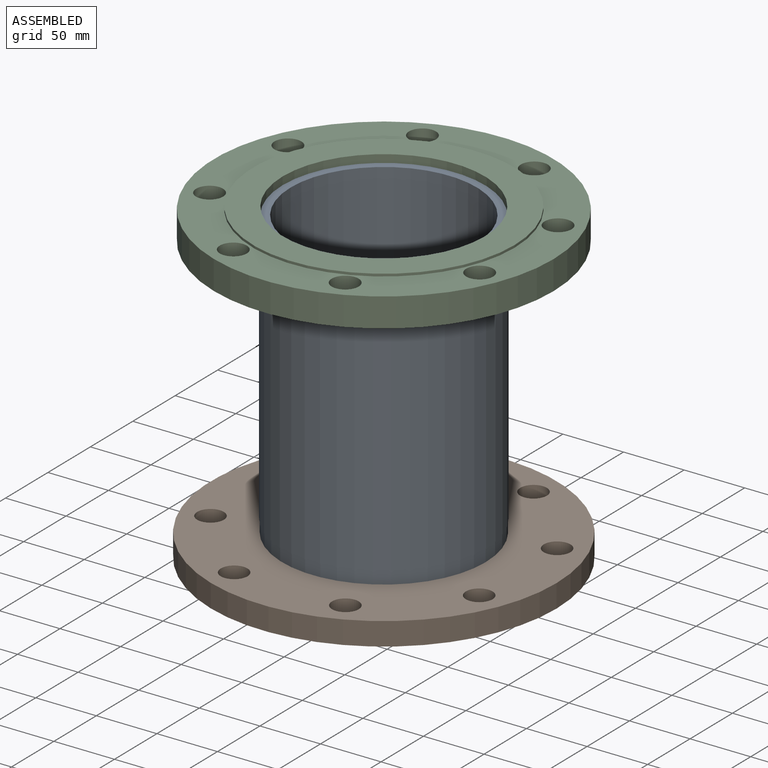
[diagram: assembled view]
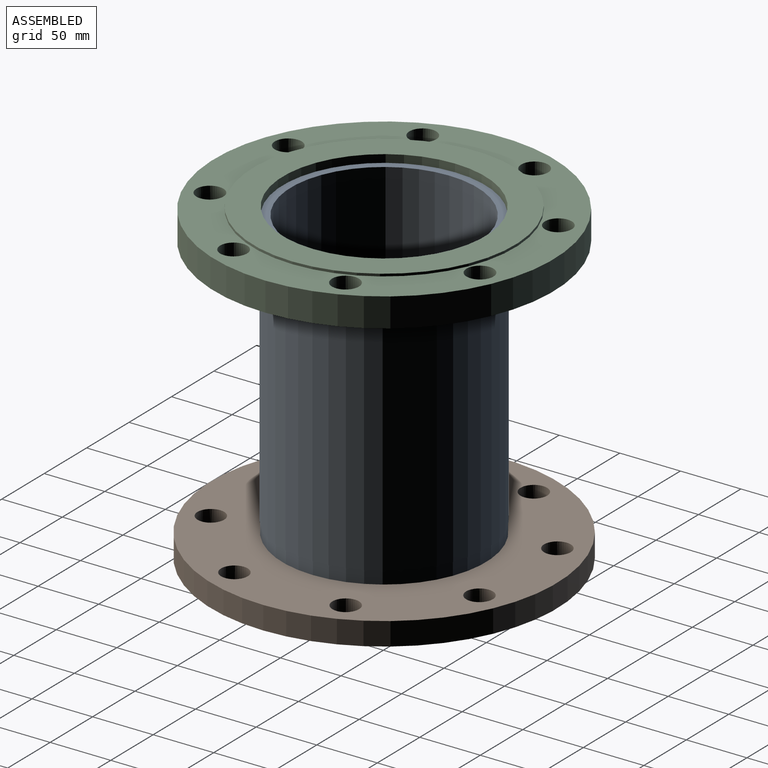
[diagram: assembled view, second angle]
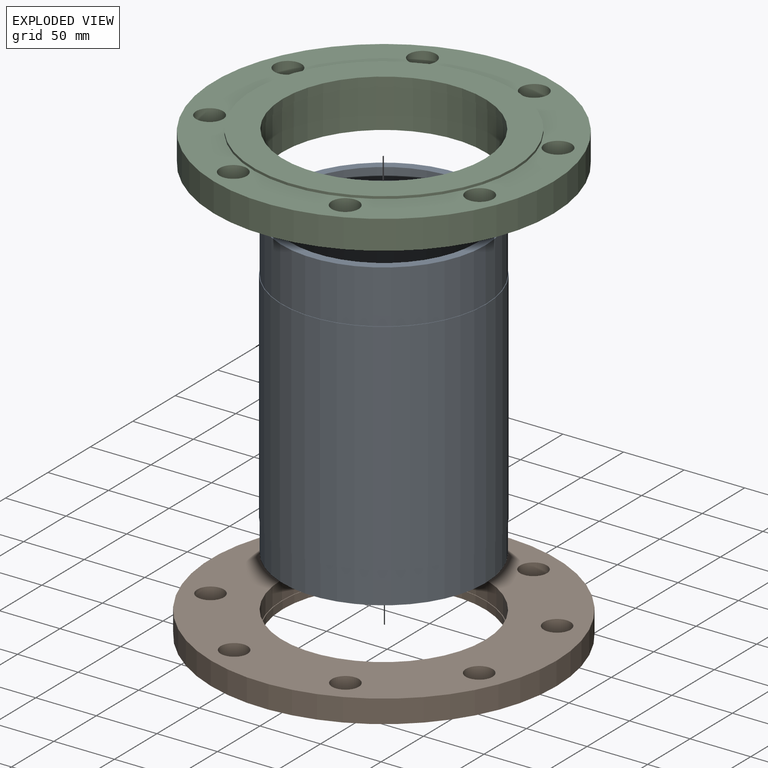
[diagram: exploded view]
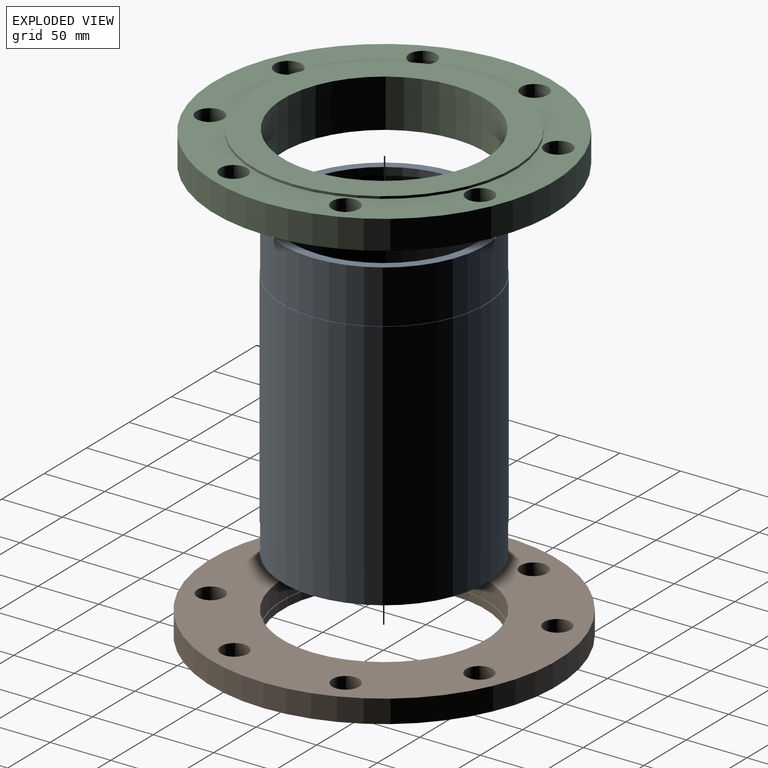
[diagram: exploded view, second angle]
ASSEMBLY  parts=3 mates=2
PART A: 8 faces, bbox 252x168.8x168.8 mm
  f0: plane 168x168mm, normal (-1,0,0), area 3588.9mm2, adj f1,f7
  f1: cylinder r=76.9mm len=252mm, axis (-1,0,0), area 121760.6mm2, adj f0,f2
  f2: plane 168x168mm, normal (1,0,0), area 3588.9mm2, adj f1,f3
  f3: cylinder r=84mm len=168mm, axis (-1,0,0), area 23222.7mm2, adj f2,f4
  f4: plane 168.8x168.8mm, normal (1,0,0), area 211.6mm2, adj f3,f5
  f5: cylinder r=84.4mm len=182mm, axis (-1,0,0), area 96514.8mm2, adj f4,f6
  f6: plane 168.8x168.8mm, normal (-1,0,0), area 211.6mm2, adj f5,f7
  f7: cylinder r=84mm len=168mm, axis (-1,0,0), area 13722.5mm2, adj f0,f6
PART B: 16 faces, bbox 285x285x22 mm
  f0: plane 168x168mm, normal (0,0,1), area 263.1mm2, adj f1,f7
  f1: cylinder r=83.5mm len=167mm, axis (0,0,1), area 3410.2mm2, adj f0,f2
  f2: plane 212x212mm, normal (0,0,-1), area 13395mm2, adj f1,f3
  f3: cylinder r=106mm len=212mm, axis (0,0,1), area 1998.1mm2, adj f2,f4
  f4: plane 285x285mm, normal (0,0,-1), area 25454mm2, adj f3,f5,f8,f9,f10,f11,f12,f13
  f5: cylinder r=142.5mm len=285mm, axis (0,0,1), area 17011.7mm2, adj f4,f6
  f6: plane 285x285mm, normal (0,0,1), area 38585.8mm2, adj f5,f7,f8,f9,f10,f11,f12,f13
  f7: cylinder r=84mm len=168mm, axis (0,0,1), area 8180.7mm2, adj f0,f6
  f8: cylinder r=11mm len=22mm, axis (0,0,1), area 1313.2mm2, adj f4,f6
  f9: cylinder r=11mm len=22mm, axis (0,0,1), area 1313.2mm2, adj f4,f6
  f10: cylinder r=11mm len=22mm, axis (0,0,1), area 1313.2mm2, adj f4,f6
  f11: cylinder r=11mm len=22mm, axis (0,0,1), area 1313.2mm2, adj f4,f6
  f12: cylinder r=11mm len=22mm, axis (0,0,1), area 1313.2mm2, adj f4,f6
  f13: cylinder r=11mm len=22mm, axis (0,0,1), area 1313.2mm2, adj f4,f6
  f14: cylinder r=11mm len=22mm, axis (0,0,1), area 1313.2mm2, adj f4,f6
  f15: cylinder r=11mm len=22mm, axis (0,0,1), area 1313.2mm2, adj f4,f6
PART C: 20 faces, bbox 280x280x40 mm
  f0: plane 186x186mm, normal (0,0,1), area 5004.6mm2, adj f1,f19
  f1: cylinder r=84mm len=168mm, axis (0,0,1), area 17680.9mm2, adj f0,f2
  f2: plane 168x168mm, normal (0,0,1), area 263.1mm2, adj f1,f3
  f3: cylinder r=83.5mm len=167mm, axis (0,0,1), area 3410.2mm2, adj f2,f4
  f4: plane 215.9x215.9mm, normal (0,0,-1), area 14705.6mm2, adj f3,f5
  f5: cylinder r=107.95mm len=215.9mm, axis (0,0,1), area 1356.5mm2, adj f4,f6
  f6: plane 280x280mm, normal (0,0,-1), area 21862mm2, adj f5,f7,f10,f11,f12,f13,f14,f15
  f7: cylinder r=140mm len=280mm, axis (0,0,1), area 21023.5mm2, adj f6,f8
  f8: plane 280x280mm, normal (0,0,1), area 27680.9mm2, adj f7,f10,f11,f12,f13,f14,f15,f16
  f9: cylinder r=96mm len=192mm, axis (0,0,1), area 4885.8mm2, adj f18,f19
  f10: cylinder r=11.11mm len=23.9mm, axis (0,0,1), area 1668.7mm2, adj f6,f8
  f11: cylinder r=11.11mm len=23.9mm, axis (0,0,1), area 1668.7mm2, adj f6,f8
  f12: cylinder r=11.11mm len=23.9mm, axis (0,0,1), area 1668.7mm2, adj f6,f8
  f13: cylinder r=11.11mm len=23.9mm, axis (0,0,1), area 1668.7mm2, adj f6,f8
  f14: cylinder r=11.11mm len=23.9mm, axis (0,0,1), area 1668.7mm2, adj f6,f8
  f15: cylinder r=11.11mm len=23.9mm, axis (0,0,1), area 1668.7mm2, adj f6,f8
  f16: cylinder r=11.11mm len=23.9mm, axis (0,0,1), area 1668.7mm2, adj f6,f8
  f17: cylinder r=11.11mm len=23.9mm, axis (0,0,1), area 1668.7mm2, adj f6,f8
  f18: torus R=99mm, axis (0,0,-1), area 2874.7mm2, adj f8,f9
  f19: torus R=93mm, axis (0,0,-1), area 2810.2mm2, adj f0,f9
PLACE A rot(axis=(0,-1,0),90deg) t=(-2.12,-0.86,-3.95)mm
PLACE B t=(-2.12,-0.86,-10.45)mm fixed
PLACE C rot(axis=(1,0,0),180deg) t=(-2.12,-0.86,254.55)mm
MATE fastened C.f1 <-> A.f1  axis (0,0,1) through (-2.12,-0.86,248.05)mm
MATE fastened A.f1 <-> B.f1  axis (0,0,1) through (-2.12,-0.86,-3.95)mm
